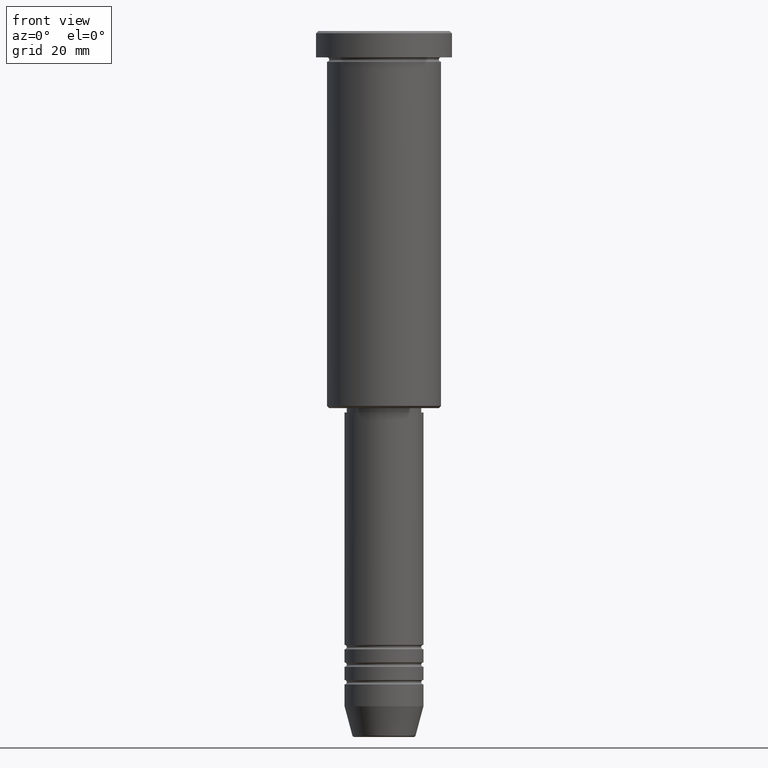
[diagram: clean part render]
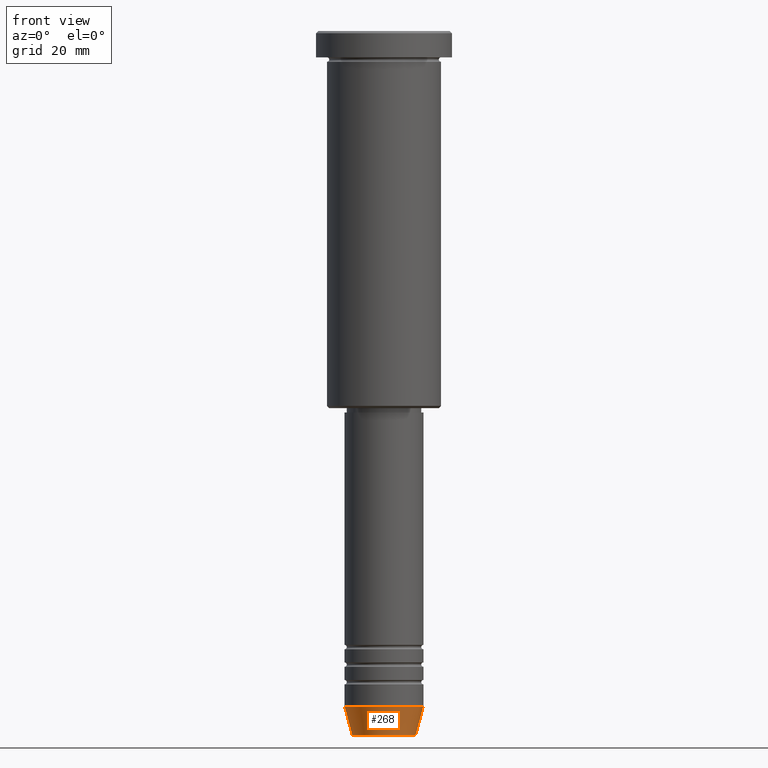
[diagram: same view with one face highlighted and labeled with its STEP entity id]
A machine part, front view. The second image highlights one B-rep face of the part: STEP entity #268.
In plain terms, the highlighted conical surface has half-angle 15 deg.
Its self-contained STEP definition (entity closure, byte-faithful):
#28 = CONICAL_SURFACE ( 'NONE', #835, 9.000000000000000000, 0.2617993877991500740 ) ;
#29 = CIRCLE ( 'NONE', #643, 7.223655072137188604 ) ;
#50 = VERTEX_POINT ( 'NONE', #265 ) ;
#76 = ORIENTED_EDGE ( 'NONE', *, *, #386, .F. ) ;
#83 = DIRECTION ( 'NONE',  ( -0.000000000000000000, -0.000000000000000000, 1.000000000000000000 ) ) ;
#123 = VECTOR ( 'NONE', #1150, 1000.000000000000000 ) ;
#182 = CARTESIAN_POINT ( 'NONE',  ( 7.223655072137188604, 0.000000000000000000, -160.6294095225512422 ) ) ;
#190 = CARTESIAN_POINT ( 'NONE',  ( 0.000000000000000000, 0.000000000000000000, -153.9999999999999716 ) ) ;
#194 = CARTESIAN_POINT ( 'NONE',  ( 9.000000000000000000, 0.000000000000000000, -153.9999999999999716 ) ) ;
#232 = EDGE_CURVE ( 'NONE', #1113, #541, #1106, .T. ) ;
#265 = CARTESIAN_POINT ( 'NONE',  ( -7.223655072137189492, 9.934123627281765110E-16, -160.6294095225512422 ) ) ;
#268 = ADVANCED_FACE ( 'NONE', ( #940 ), #28, .T. ) ;
#277 = DIRECTION ( 'NONE',  ( 1.000000000000000000, 0.000000000000000000, 0.000000000000000000 ) ) ;
#285 = ORIENTED_EDGE ( 'NONE', *, *, #232, .T. ) ;
#377 = DIRECTION ( 'NONE',  ( -0.000000000000000000, -0.000000000000000000, 1.000000000000000000 ) ) ;
#386 = EDGE_CURVE ( 'NONE', #50, #746, #1045, .T. ) ;
#413 = AXIS2_PLACEMENT_3D ( 'NONE', #1016, #566, #848 ) ;
#484 = DIRECTION ( 'NONE',  ( 0.2588190451025213501, 0.000000000000000000, 0.9659258262890680902 ) ) ;
#541 = VERTEX_POINT ( 'NONE', #1003 ) ;
#566 = DIRECTION ( 'NONE',  ( -0.000000000000000000, -0.000000000000000000, 1.000000000000000000 ) ) ;
#580 = EDGE_CURVE ( 'NONE', #50, #1113, #29, .T. ) ;
#643 = AXIS2_PLACEMENT_3D ( 'NONE', #807, #83, #725 ) ;
#660 = EDGE_LOOP ( 'NONE', ( #76, #720, #285, #1031 ) ) ;
#720 = ORIENTED_EDGE ( 'NONE', *, *, #580, .T. ) ;
#725 = DIRECTION ( 'NONE',  ( 1.000000000000000000, 0.000000000000000000, 0.000000000000000000 ) ) ;
#741 = EDGE_CURVE ( 'NONE', #746, #541, #950, .T. ) ;
#746 = VERTEX_POINT ( 'NONE', #834 ) ;
#807 = CARTESIAN_POINT ( 'NONE',  ( 0.000000000000000000, 0.000000000000000000, -160.6294095225512422 ) ) ;
#815 = VECTOR ( 'NONE', #484, 1000.000000000000000 ) ;
#834 = CARTESIAN_POINT ( 'NONE',  ( -9.000000000000000000, 1.102182119232617714E-15, -153.9999999999999716 ) ) ;
#835 = AXIS2_PLACEMENT_3D ( 'NONE', #190, #377, #277 ) ;
#848 = DIRECTION ( 'NONE',  ( 1.000000000000000000, 0.000000000000000000, 0.000000000000000000 ) ) ;
#940 = FACE_OUTER_BOUND ( 'NONE', #660, .T. ) ;
#950 = CIRCLE ( 'NONE', #413, 9.000000000000000000 ) ;
#1003 = CARTESIAN_POINT ( 'NONE',  ( 9.000000000000000000, 0.000000000000000000, -153.9999999999999716 ) ) ;
#1016 = CARTESIAN_POINT ( 'NONE',  ( 0.000000000000000000, 0.000000000000000000, -153.9999999999999716 ) ) ;
#1031 = ORIENTED_EDGE ( 'NONE', *, *, #741, .F. ) ;
#1045 = LINE ( 'NONE', #1144, #123 ) ;
#1106 = LINE ( 'NONE', #194, #815 ) ;
#1113 = VERTEX_POINT ( 'NONE', #182 ) ;
#1144 = CARTESIAN_POINT ( 'NONE',  ( -9.000000000000000000, 1.102182119232617714E-15, -153.9999999999999716 ) ) ;
#1150 = DIRECTION ( 'NONE',  ( -0.2588190451025213501, 3.169619151431772337E-17, 0.9659258262890680902 ) ) ;